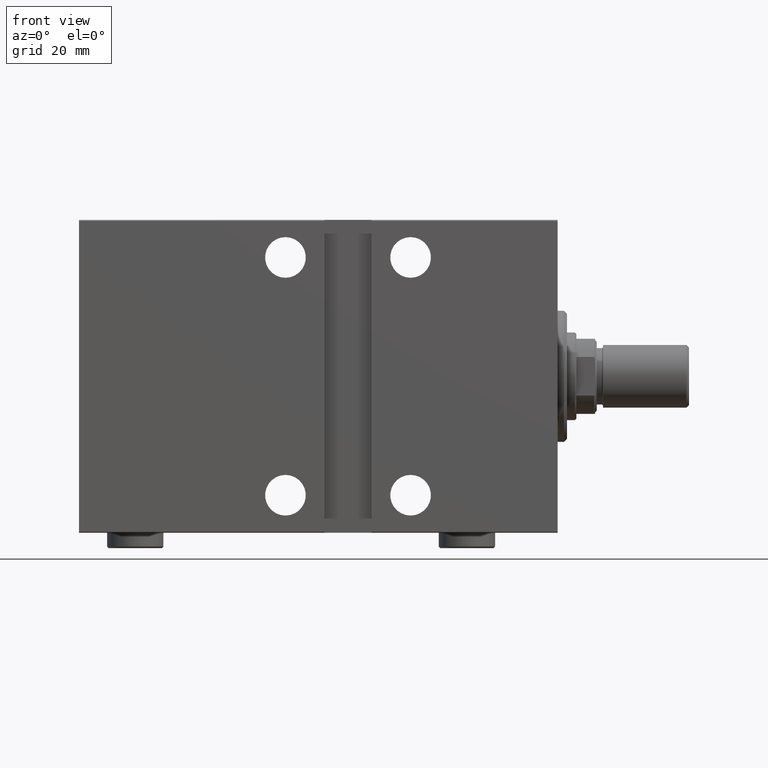
[diagram: clean part render]
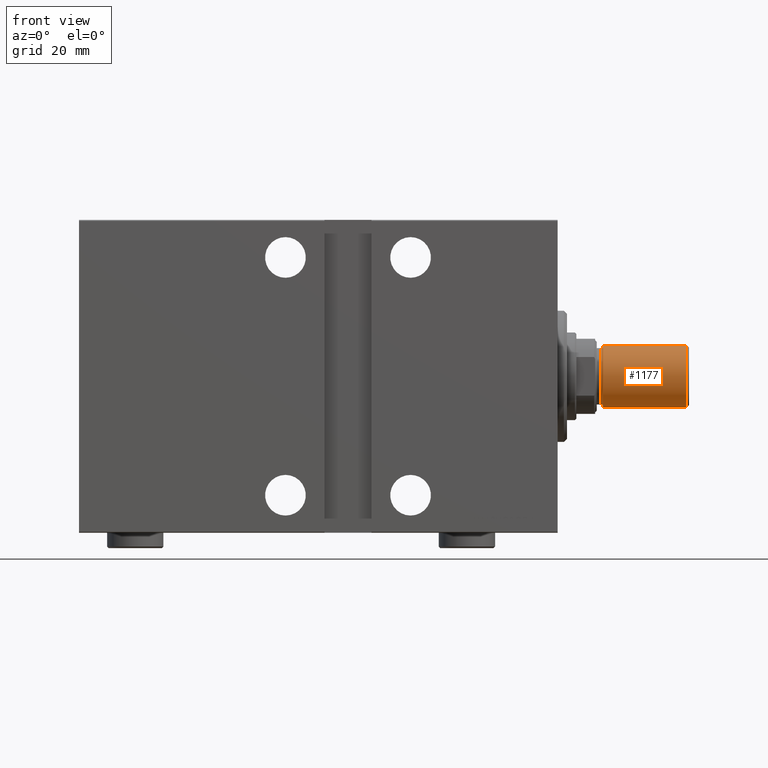
[diagram: same view with one face highlighted and labeled with its STEP entity id]
A machine part, front view. The second image highlights one B-rep face of the part: STEP entity #1177.
In plain terms, the highlighted cylindrical surface (edge-blend (fillet) strip) has radius 10 mm, axis along (1, 0, -0).
Its self-contained STEP definition (entity closure, byte-faithful):
#799 = LINE ( 'NONE', #24513, #22505 ) ;
#1177 = ADVANCED_FACE ( 'NONE', ( #2818 ), #13091, .T. ) ;
#2668 = ORIENTED_EDGE ( 'NONE', *, *, #31612, .F. ) ;
#2818 = FACE_OUTER_BOUND ( 'NONE', #12997, .T. ) ;
#6776 = DIRECTION ( 'NONE',  ( 0.000000000000000000, 0.000000000000000000, 1.000000000000000000 ) ) ;
#12997 = EDGE_LOOP ( 'NONE', ( #2668, #30958, #19432, #33469 ) ) ;
#13075 = AXIS2_PLACEMENT_3D ( 'NONE', #24426, #6776, #38084 ) ;
#13091 = CYLINDRICAL_SURFACE ( 'NONE', #21286, 10.00000000000000000 ) ;
#14997 = CARTESIAN_POINT ( 'NONE',  ( 10.00000000000000000, 1.224646799147353256E-15, 27.50000000000000000 ) ) ;
#17583 = CARTESIAN_POINT ( 'NONE',  ( 10.00000000000000000, 1.224646799147353256E-15, 27.50000000000000000 ) ) ;
#17919 = DIRECTION ( 'NONE',  ( -0.000000000000000000, -0.000000000000000000, -1.000000000000000000 ) ) ;
#19432 = ORIENTED_EDGE ( 'NONE', *, *, #36644, .T. ) ;
#19747 = DIRECTION ( 'NONE',  ( -0.000000000000000000, -0.000000000000000000, 1.000000000000000000 ) ) ;
#21073 = CARTESIAN_POINT ( 'NONE',  ( 0.000000000000000000, 0.000000000000000000, 27.50000000000000000 ) ) ;
#21286 = AXIS2_PLACEMENT_3D ( 'NONE', #21073, #33448, #23386 ) ;
#21587 = DIRECTION ( 'NONE',  ( -0.000000000000000000, -0.000000000000000000, -1.000000000000000000 ) ) ;
#22505 = VECTOR ( 'NONE', #21587, 1000.000000000000000 ) ;
#23386 = DIRECTION ( 'NONE',  ( -1.000000000000000000, 0.000000000000000000, 0.000000000000000000 ) ) ;
#23994 = AXIS2_PLACEMENT_3D ( 'NONE', #39889, #19747, #36299 ) ;
#24426 = CARTESIAN_POINT ( 'NONE',  ( 0.000000000000000000, 0.000000000000000000, 27.50000000000000000 ) ) ;
#24513 = CARTESIAN_POINT ( 'NONE',  ( -10.00000000000000000, 0.000000000000000000, 27.50000000000000000 ) ) ;
#28220 = CARTESIAN_POINT ( 'NONE',  ( -10.00000000000000000, 0.000000000000000000, 0.7999999999999986011 ) ) ;
#29211 = VERTEX_POINT ( 'NONE', #40535 ) ;
#30958 = ORIENTED_EDGE ( 'NONE', *, *, #31482, .F. ) ;
#31482 = EDGE_CURVE ( 'NONE', #29211, #37644, #43111, .T. ) ;
#31612 = EDGE_CURVE ( 'NONE', #37644, #35083, #32454, .T. ) ;
#32168 = VERTEX_POINT ( 'NONE', #28220 ) ;
#32454 = LINE ( 'NONE', #14997, #35227 ) ;
#33448 = DIRECTION ( 'NONE',  ( -0.000000000000000000, -0.000000000000000000, -1.000000000000000000 ) ) ;
#33469 = ORIENTED_EDGE ( 'NONE', *, *, #39058, .T. ) ;
#35083 = VERTEX_POINT ( 'NONE', #38265 ) ;
#35227 = VECTOR ( 'NONE', #17919, 1000.000000000000000 ) ;
#36299 = DIRECTION ( 'NONE',  ( 1.000000000000000000, 0.000000000000000000, 0.000000000000000000 ) ) ;
#36644 = EDGE_CURVE ( 'NONE', #29211, #32168, #799, .T. ) ;
#37644 = VERTEX_POINT ( 'NONE', #17583 ) ;
#38084 = DIRECTION ( 'NONE',  ( 1.000000000000000000, 0.000000000000000000, 0.000000000000000000 ) ) ;
#38265 = CARTESIAN_POINT ( 'NONE',  ( 10.00000000000000000, 1.224646799147353256E-15, 0.7999999999999986011 ) ) ;
#39058 = EDGE_CURVE ( 'NONE', #32168, #35083, #42584, .T. ) ;
#39889 = CARTESIAN_POINT ( 'NONE',  ( 0.000000000000000000, 0.000000000000000000, 0.7999999999999986011 ) ) ;
#40535 = CARTESIAN_POINT ( 'NONE',  ( -10.00000000000000000, 0.000000000000000000, 27.50000000000000000 ) ) ;
#42584 = CIRCLE ( 'NONE', #23994, 10.00000000000000000 ) ;
#43111 = CIRCLE ( 'NONE', #13075, 10.00000000000000000 ) ;